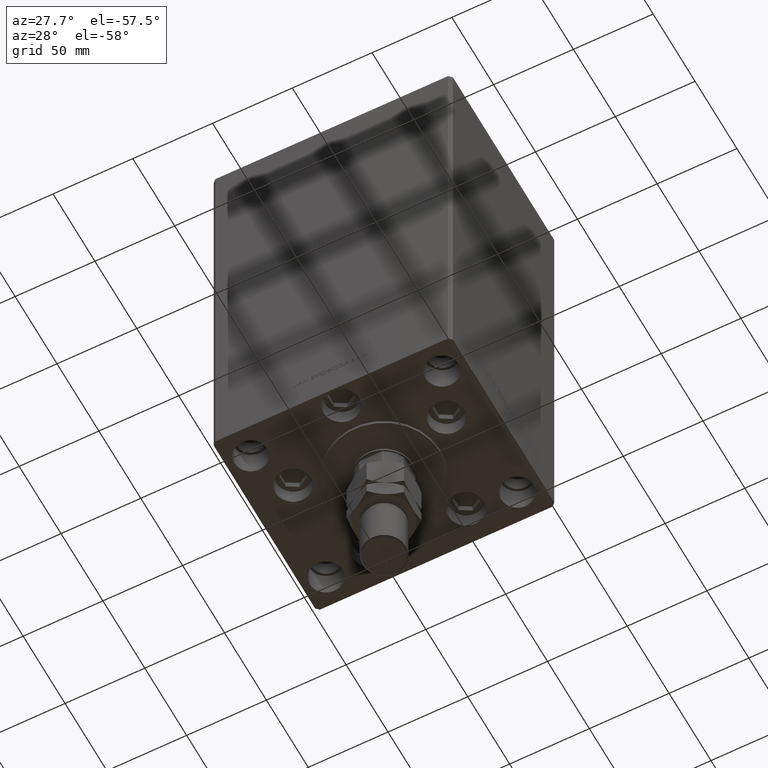
[diagram: clean part render]
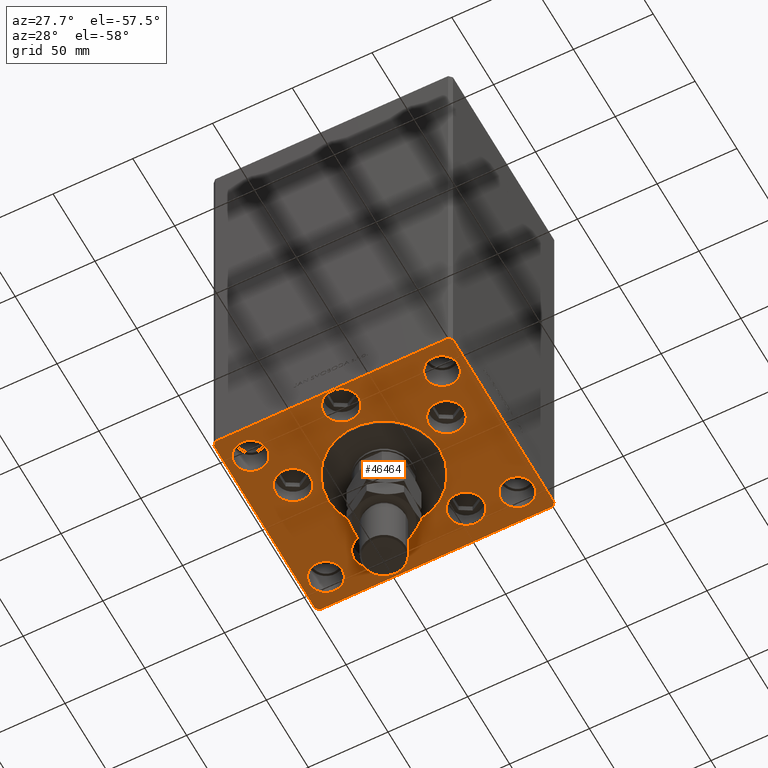
[diagram: same view with one face highlighted and labeled with its STEP entity id]
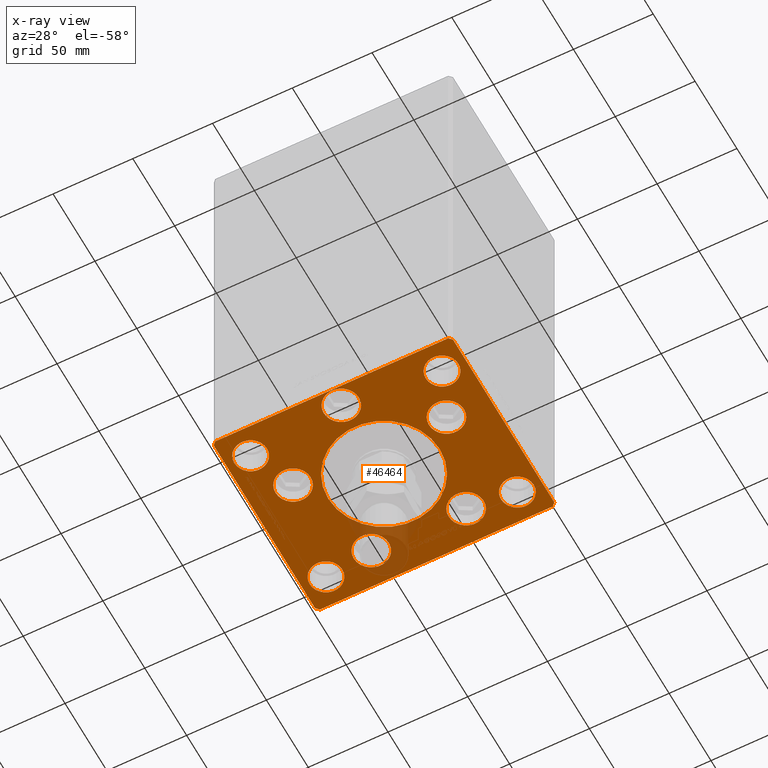
[diagram: x-ray of the same camera — body ghosted, the highlighted face saturated]
A machine part, auxiliary view. The second image highlights one B-rep face of the part: STEP entity #46464.
The next image is the same camera in x-ray: the body ghosted, the highlighted face saturated — about 5% of this face is hidden behind the body in this view.
In plain terms, the highlighted planar face has unit normal (0, 0, -1).
Its self-contained STEP definition (entity closure, byte-faithful):
#443 = EDGE_CURVE ( 'NONE', #10483, #50308, #12567, .T. ) ;
#507 = EDGE_CURVE ( 'NONE', #43805, #47898, #44443, .T. ) ;
#1202 = DIRECTION ( 'NONE',  ( 0.000000000000000000, 0.000000000000000000, 1.000000000000000000 ) ) ;
#1351 = CARTESIAN_POINT ( 'NONE',  ( -59.08326112068523628, -16.99999999999998934, 0.000000000000000000 ) ) ;
#1379 = EDGE_CURVE ( 'NONE', #7488, #6915, #21608, .T. ) ;
#1680 = DIRECTION ( 'NONE',  ( 1.000000000000000000, 0.000000000000000000, 0.000000000000000000 ) ) ;
#1813 = FACE_BOUND ( 'NONE', #44815, .T. ) ;
#2355 = CARTESIAN_POINT ( 'NONE',  ( -70.25000000000000000, -45.00000000000000000, 0.000000000000000000 ) ) ;
#2537 = EDGE_CURVE ( 'NONE', #6915, #7488, #19316, .T. ) ;
#2937 = ORIENTED_EDGE ( 'NONE', *, *, #29869, .T. ) ;
#3164 = DIRECTION ( 'NONE',  ( 1.000000000000000000, 0.000000000000000000, 0.000000000000000000 ) ) ;
#3392 = AXIS2_PLACEMENT_3D ( 'NONE', #12013, #43975, #16874 ) ;
#3421 = CARTESIAN_POINT ( 'NONE',  ( 29.73102073172061921, 41.43749999999997868, 0.000000000000000000 ) ) ;
#3515 = DIRECTION ( 'NONE',  ( 1.000000000000000000, 0.000000000000000000, 0.000000000000000000 ) ) ;
#3555 = ORIENTED_EDGE ( 'NONE', *, *, #40276, .T. ) ;
#3654 = VERTEX_POINT ( 'NONE', #49079 ) ;
#3710 = EDGE_CURVE ( 'NONE', #40291, #24454, #43961, .T. ) ;
#3824 = VERTEX_POINT ( 'NONE', #15796 ) ;
#4271 = EDGE_LOOP ( 'NONE', ( #17568, #41272 ) ) ;
#4351 = ORIENTED_EDGE ( 'NONE', *, *, #7043, .F. ) ;
#4615 = EDGE_CURVE ( 'NONE', #39604, #37613, #47872, .T. ) ;
#4895 = ORIENTED_EDGE ( 'NONE', *, *, #49908, .F. ) ;
#5079 = ORIENTED_EDGE ( 'NONE', *, *, #2537, .F. ) ;
#5294 = CIRCLE ( 'NONE', #21652, 11.00000000000000000 ) ;
#5361 = EDGE_CURVE ( 'NONE', #24454, #3824, #27336, .T. ) ;
#5520 = VERTEX_POINT ( 'NONE', #42367 ) ;
#5753 = AXIS2_PLACEMENT_3D ( 'NONE', #7699, #8452, #11543 ) ;
#6124 = DIRECTION ( 'NONE',  ( 0.000000000000000000, 0.000000000000000000, 1.000000000000000000 ) ) ;
#6352 = VERTEX_POINT ( 'NONE', #17091 ) ;
#6380 = VERTEX_POINT ( 'NONE', #32695 ) ;
#6566 = CARTESIAN_POINT ( 'NONE',  ( -35.00000000000000711, -6.938893903907228378E-15, 0.000000000000000000 ) ) ;
#6729 = AXIS2_PLACEMENT_3D ( 'NONE', #9956, #44487, #17642 ) ;
#6915 = VERTEX_POINT ( 'NONE', #18921 ) ;
#6999 = DIRECTION ( 'NONE',  ( 0.000000000000000000, 0.000000000000000000, 1.000000000000000000 ) ) ;
#7026 = AXIS2_PLACEMENT_3D ( 'NONE', #3421, #6999, #3164 ) ;
#7043 = EDGE_CURVE ( 'NONE', #50277, #28828, #42224, .T. ) ;
#7284 = ORIENTED_EDGE ( 'NONE', *, *, #11504, .F. ) ;
#7373 = DIRECTION ( 'NONE',  ( 0.000000000000000000, 1.000000000000000000, 0.000000000000000000 ) ) ;
#7488 = VERTEX_POINT ( 'NONE', #13191 ) ;
#7614 = VECTOR ( 'NONE', #28439, 1000.000000000000114 ) ;
#7699 = CARTESIAN_POINT ( 'NONE',  ( 60.00000000000000000, 45.00000000000000000, 0.000000000000000000 ) ) ;
#7916 = CIRCLE ( 'NONE', #33286, 35.00000000000000711 ) ;
#7947 = CARTESIAN_POINT ( 'NONE',  ( 0.000000000000000000, -51.00000000000000000, 0.000000000000000000 ) ) ;
#8169 = ORIENTED_EDGE ( 'NONE', *, *, #25336, .F. ) ;
#8452 = DIRECTION ( 'NONE',  ( 0.000000000000000000, 0.000000000000000000, 1.000000000000000000 ) ) ;
#8554 = VERTEX_POINT ( 'NONE', #20425 ) ;
#8639 = CARTESIAN_POINT ( 'NONE',  ( 0.000000000000000000, -6.938893903907228378E-15, 0.000000000000000000 ) ) ;
#8977 = FACE_BOUND ( 'NONE', #20734, .T. ) ;
#9218 = VERTEX_POINT ( 'NONE', #1351 ) ;
#9490 = FACE_BOUND ( 'NONE', #40988, .T. ) ;
#9956 = CARTESIAN_POINT ( 'NONE',  ( -60.00000000000000000, 45.00000000000000711, 0.000000000000000000 ) ) ;
#10109 = CIRCLE ( 'NONE', #45251, 10.25000000000000178 ) ;
#10311 = EDGE_CURVE ( 'NONE', #11995, #6352, #11973, .T. ) ;
#10344 = LINE ( 'NONE', #45889, #19102 ) ;
#10483 = VERTEX_POINT ( 'NONE', #39201 ) ;
#10575 = CARTESIAN_POINT ( 'NONE',  ( -29.73102073172061921, 41.43749999999997868, 0.000000000000000000 ) ) ;
#10704 = VERTEX_POINT ( 'NONE', #46049 ) ;
#10774 = EDGE_CURVE ( 'NONE', #28828, #50277, #7916, .T. ) ;
#11504 = EDGE_CURVE ( 'NONE', #44147, #35781, #46343, .T. ) ;
#11543 = DIRECTION ( 'NONE',  ( 1.000000000000000000, 0.000000000000000000, 0.000000000000000000 ) ) ;
#11564 = FACE_BOUND ( 'NONE', #42485, .T. ) ;
#11579 = DIRECTION ( 'NONE',  ( 0.000000000000000000, 0.000000000000000000, 1.000000000000000000 ) ) ;
#11631 = CIRCLE ( 'NONE', #6729, 10.25000000000000178 ) ;
#11632 = VERTEX_POINT ( 'NONE', #17028 ) ;
#11763 = AXIS2_PLACEMENT_3D ( 'NONE', #10575, #11579, #23600 ) ;
#11891 = CARTESIAN_POINT ( 'NONE',  ( 29.73102073172061921, 41.43749999999997868, 0.000000000000000000 ) ) ;
#11961 = ORIENTED_EDGE ( 'NONE', *, *, #13136, .F. ) ;
#11973 = CIRCLE ( 'NONE', #25060, 11.00000000000000355 ) ;
#11995 = VERTEX_POINT ( 'NONE', #46645 ) ;
#12013 = CARTESIAN_POINT ( 'NONE',  ( 48.08326112068523628, -16.99999999999998934, 0.000000000000000000 ) ) ;
#12079 = VERTEX_POINT ( 'NONE', #27721 ) ;
#12375 = DIRECTION ( 'NONE',  ( 0.000000000000000000, 0.000000000000000000, 1.000000000000000000 ) ) ;
#12557 = DIRECTION ( 'NONE',  ( 1.000000000000000000, 0.000000000000000000, 0.000000000000000000 ) ) ;
#12567 = CIRCLE ( 'NONE', #11763, 11.00000000000000000 ) ;
#12835 = CARTESIAN_POINT ( 'NONE',  ( -72.99999999999998579, 62.49999999999997158, 0.000000000000000000 ) ) ;
#13036 = AXIS2_PLACEMENT_3D ( 'NONE', #28200, #20530, #43544 ) ;
#13080 = FACE_BOUND ( 'NONE', #4271, .T. ) ;
#13136 = EDGE_CURVE ( 'NONE', #35781, #44147, #39091, .T. ) ;
#13191 = CARTESIAN_POINT ( 'NONE',  ( 18.73102073172061921, 41.43749999999997868, 0.000000000000000000 ) ) ;
#13211 = CIRCLE ( 'NONE', #3392, 11.00000000000000355 ) ;
#13421 = AXIS2_PLACEMENT_3D ( 'NONE', #27196, #38979, #46125 ) ;
#13556 = LINE ( 'NONE', #18162, #46693 ) ;
#13817 = CARTESIAN_POINT ( 'NONE',  ( -60.00000000000000711, -45.00000000000000000, 0.000000000000000000 ) ) ;
#14048 = ORIENTED_EDGE ( 'NONE', *, *, #3710, .T. ) ;
#14146 = CARTESIAN_POINT ( 'NONE',  ( 73.00000000000001421, 62.50000000000000000, 0.000000000000000000 ) ) ;
#15064 = ORIENTED_EDGE ( 'NONE', *, *, #38381, .T. ) ;
#15796 = CARTESIAN_POINT ( 'NONE',  ( 75.00000000000001421, -60.49999999999992184, 0.000000000000000000 ) ) ;
#16069 = EDGE_LOOP ( 'NONE', ( #4351, #30095 ) ) ;
#16522 = EDGE_CURVE ( 'NONE', #31477, #5520, #45727, .T. ) ;
#16669 = FACE_BOUND ( 'NONE', #46751, .T. ) ;
#16874 = DIRECTION ( 'NONE',  ( 1.000000000000000000, 0.000000000000000000, 0.000000000000000000 ) ) ;
#17028 = CARTESIAN_POINT ( 'NONE',  ( -37.08326112068522917, -16.99999999999998934, 0.000000000000000000 ) ) ;
#17091 = CARTESIAN_POINT ( 'NONE',  ( 37.08326112068522917, -16.99999999999998934, 0.000000000000000000 ) ) ;
#17374 = DIRECTION ( 'NONE',  ( 1.000000000000000000, 7.604267291953125828E-16, 0.000000000000000000 ) ) ;
#17568 = ORIENTED_EDGE ( 'NONE', *, *, #30268, .F. ) ;
#17642 = DIRECTION ( 'NONE',  ( 1.000000000000000000, 0.000000000000000000, 0.000000000000000000 ) ) ;
#17664 = AXIS2_PLACEMENT_3D ( 'NONE', #22975, #38589, #18638 ) ;
#17810 = ORIENTED_EDGE ( 'NONE', *, *, #23619, .F. ) ;
#17915 = ORIENTED_EDGE ( 'NONE', *, *, #24179, .T. ) ;
#18162 = CARTESIAN_POINT ( 'NONE',  ( 75.00000000000001421, 60.50000000000002842, 0.000000000000000000 ) ) ;
#18372 = DIRECTION ( 'NONE',  ( 1.000000000000000000, 0.000000000000000000, 0.000000000000000000 ) ) ;
#18462 = EDGE_CURVE ( 'NONE', #6380, #3654, #47871, .T. ) ;
#18638 = DIRECTION ( 'NONE',  ( 1.000000000000000000, 0.000000000000000000, 0.000000000000000000 ) ) ;
#18860 = CARTESIAN_POINT ( 'NONE',  ( -18.73102073172061921, 41.43749999999997868, 0.000000000000000000 ) ) ;
#18904 = CARTESIAN_POINT ( 'NONE',  ( 75.00000000000001421, -60.49999999999992184, 0.000000000000000000 ) ) ;
#18921 = CARTESIAN_POINT ( 'NONE',  ( 40.73102073172061921, 41.43749999999997868, 0.000000000000000000 ) ) ;
#19102 = VECTOR ( 'NONE', #33386, 1000.000000000000000 ) ;
#19316 = CIRCLE ( 'NONE', #7026, 11.00000000000000355 ) ;
#19634 = ORIENTED_EDGE ( 'NONE', *, *, #30762, .T. ) ;
#19863 = ORIENTED_EDGE ( 'NONE', *, *, #10311, .F. ) ;
#20314 = DIRECTION ( 'NONE',  ( 1.000000000000000000, 0.000000000000000000, 0.000000000000000000 ) ) ;
#20425 = CARTESIAN_POINT ( 'NONE',  ( 49.75000000000000000, -45.00000000000000000, 0.000000000000000000 ) ) ;
#20509 = FACE_BOUND ( 'NONE', #16069, .T. ) ;
#20530 = DIRECTION ( 'NONE',  ( 0.000000000000000000, 0.000000000000000000, 1.000000000000000000 ) ) ;
#20734 = EDGE_LOOP ( 'NONE', ( #4895, #34748 ) ) ;
#21126 = DIRECTION ( 'NONE',  ( 0.000000000000000000, 0.000000000000000000, 1.000000000000000000 ) ) ;
#21403 = EDGE_LOOP ( 'NONE', ( #2937, #14048, #42094, #3555, #15064, #17915, #35259, #19634 ) ) ;
#21427 = DIRECTION ( 'NONE',  ( 1.000000000000000000, 0.000000000000000000, 0.000000000000000000 ) ) ;
#21608 = CIRCLE ( 'NONE', #36317, 11.00000000000000355 ) ;
#21652 = AXIS2_PLACEMENT_3D ( 'NONE', #7947, #35595, #32766 ) ;
#21747 = DIRECTION ( 'NONE',  ( 1.000000000000000000, 0.000000000000000000, 0.000000000000000000 ) ) ;
#21935 = DIRECTION ( 'NONE',  ( 1.000000000000000000, 0.000000000000000000, 0.000000000000000000 ) ) ;
#22231 = CARTESIAN_POINT ( 'NONE',  ( -73.00000000000001421, -62.50000000000002842, 0.000000000000000000 ) ) ;
#22386 = ORIENTED_EDGE ( 'NONE', *, *, #4615, .F. ) ;
#22394 = EDGE_CURVE ( 'NONE', #5520, #31477, #25383, .T. ) ;
#22975 = CARTESIAN_POINT ( 'NONE',  ( -60.00000000000000000, 45.00000000000000711, 0.000000000000000000 ) ) ;
#23212 = CARTESIAN_POINT ( 'NONE',  ( -29.73102073172061921, 41.43749999999997868, 0.000000000000000000 ) ) ;
#23600 = DIRECTION ( 'NONE',  ( 1.000000000000000000, 0.000000000000000000, 0.000000000000000000 ) ) ;
#23619 = EDGE_CURVE ( 'NONE', #9218, #11632, #42565, .T. ) ;
#23747 = DIRECTION ( 'NONE',  ( 0.7071067811865489050, 0.7071067811865462405, 0.000000000000000000 ) ) ;
#23845 = AXIS2_PLACEMENT_3D ( 'NONE', #40075, #36750, #1680 ) ;
#24179 = EDGE_CURVE ( 'NONE', #12079, #6380, #29759, .T. ) ;
#24454 = VERTEX_POINT ( 'NONE', #45240 ) ;
#24494 = CARTESIAN_POINT ( 'NONE',  ( 73.00000000000001421, -62.49999999999991473, 0.000000000000000000 ) ) ;
#24683 = EDGE_CURVE ( 'NONE', #8554, #49000, #28740, .T. ) ;
#25060 = AXIS2_PLACEMENT_3D ( 'NONE', #43331, #12375, #20314 ) ;
#25102 = FACE_BOUND ( 'NONE', #48328, .T. ) ;
#25172 = AXIS2_PLACEMENT_3D ( 'NONE', #44261, #31749, #12557 ) ;
#25271 = CARTESIAN_POINT ( 'NONE',  ( 49.75000000000000000, 45.00000000000000000, 0.000000000000000000 ) ) ;
#25336 = EDGE_CURVE ( 'NONE', #6352, #11995, #13211, .T. ) ;
#25362 = FACE_OUTER_BOUND ( 'NONE', #21403, .T. ) ;
#25383 = CIRCLE ( 'NONE', #5753, 10.24999999999999467 ) ;
#25532 = CIRCLE ( 'NONE', #32057, 11.00000000000000355 ) ;
#25828 = LINE ( 'NONE', #18904, #45925 ) ;
#27196 = CARTESIAN_POINT ( 'NONE',  ( 0.000000000000000000, -51.00000000000000000, 0.000000000000000000 ) ) ;
#27336 = LINE ( 'NONE', #24494, #45484 ) ;
#27721 = CARTESIAN_POINT ( 'NONE',  ( 73.00000000000001421, 62.50000000000000000, 0.000000000000000000 ) ) ;
#27845 = EDGE_CURVE ( 'NONE', #11632, #9218, #25532, .T. ) ;
#28200 = CARTESIAN_POINT ( 'NONE',  ( 60.00000000000000000, 45.00000000000000000, 0.000000000000000000 ) ) ;
#28433 = FACE_BOUND ( 'NONE', #35817, .T. ) ;
#28439 = DIRECTION ( 'NONE',  ( 0.7071067811865474617, -0.7071067811865474617, 0.000000000000000000 ) ) ;
#28690 = DIRECTION ( 'NONE',  ( 1.000000000000000000, 0.000000000000000000, 0.000000000000000000 ) ) ;
#28697 = DIRECTION ( 'NONE',  ( -0.7071067811865549002, -0.7071067811865401342, 0.000000000000000000 ) ) ;
#28740 = CIRCLE ( 'NONE', #23845, 10.25000000000000178 ) ;
#28828 = VERTEX_POINT ( 'NONE', #33849 ) ;
#28862 = DIRECTION ( 'NONE',  ( 0.000000000000000000, 0.000000000000000000, 1.000000000000000000 ) ) ;
#29102 = CARTESIAN_POINT ( 'NONE',  ( -11.00000000000000000, -51.00000000000000000, 0.000000000000000000 ) ) ;
#29759 = LINE ( 'NONE', #14146, #36047 ) ;
#29869 = EDGE_CURVE ( 'NONE', #10704, #40291, #39965, .T. ) ;
#30095 = ORIENTED_EDGE ( 'NONE', *, *, #10774, .F. ) ;
#30129 = DIRECTION ( 'NONE',  ( 0.000000000000000000, 0.000000000000000000, 1.000000000000000000 ) ) ;
#30268 = EDGE_CURVE ( 'NONE', #49000, #8554, #10109, .T. ) ;
#30711 = ORIENTED_EDGE ( 'NONE', *, *, #39619, .F. ) ;
#30762 = EDGE_CURVE ( 'NONE', #3654, #10704, #10344, .T. ) ;
#30823 = AXIS2_PLACEMENT_3D ( 'NONE', #13817, #6124, #21747 ) ;
#30884 = DIRECTION ( 'NONE',  ( 0.000000000000000000, 0.000000000000000000, 1.000000000000000000 ) ) ;
#30946 = ORIENTED_EDGE ( 'NONE', *, *, #27845, .F. ) ;
#31350 = DIRECTION ( 'NONE',  ( 0.000000000000000000, 0.000000000000000000, 1.000000000000000000 ) ) ;
#31477 = VERTEX_POINT ( 'NONE', #25271 ) ;
#31749 = DIRECTION ( 'NONE',  ( 0.000000000000000000, 0.000000000000000000, 1.000000000000000000 ) ) ;
#31877 = VECTOR ( 'NONE', #28697, 1000.000000000000000 ) ;
#31948 = AXIS2_PLACEMENT_3D ( 'NONE', #38317, #30129, #18372 ) ;
#32057 = AXIS2_PLACEMENT_3D ( 'NONE', #45656, #21126, #33652 ) ;
#32274 = CARTESIAN_POINT ( 'NONE',  ( -75.00000000000000000, -60.50000000000004263, 0.000000000000000000 ) ) ;
#32329 = VECTOR ( 'NONE', #17374, 1000.000000000000000 ) ;
#32695 = CARTESIAN_POINT ( 'NONE',  ( -72.99999999999998579, 62.49999999999997158, 0.000000000000000000 ) ) ;
#32766 = DIRECTION ( 'NONE',  ( 1.000000000000000000, 0.000000000000000000, 0.000000000000000000 ) ) ;
#32979 = AXIS2_PLACEMENT_3D ( 'NONE', #44022, #36628, #28690 ) ;
#33099 = EDGE_LOOP ( 'NONE', ( #5079, #36752 ) ) ;
#33286 = AXIS2_PLACEMENT_3D ( 'NONE', #36795, #33455, #21935 ) ;
#33386 = DIRECTION ( 'NONE',  ( 0.000000000000000000, -1.000000000000000000, 0.000000000000000000 ) ) ;
#33455 = DIRECTION ( 'NONE',  ( 0.000000000000000000, 0.000000000000000000, 1.000000000000000000 ) ) ;
#33652 = DIRECTION ( 'NONE',  ( 1.000000000000000000, 0.000000000000000000, 0.000000000000000000 ) ) ;
#33849 = CARTESIAN_POINT ( 'NONE',  ( 35.00000000000000711, -2.652630106891490698E-15, 0.000000000000000000 ) ) ;
#34625 = ORIENTED_EDGE ( 'NONE', *, *, #16522, .F. ) ;
#34748 = ORIENTED_EDGE ( 'NONE', *, *, #507, .F. ) ;
#34778 = AXIS2_PLACEMENT_3D ( 'NONE', #8639, #28862, #44449 ) ;
#35259 = ORIENTED_EDGE ( 'NONE', *, *, #18462, .T. ) ;
#35460 = CIRCLE ( 'NONE', #41990, 11.00000000000000000 ) ;
#35595 = DIRECTION ( 'NONE',  ( 0.000000000000000000, 0.000000000000000000, 1.000000000000000000 ) ) ;
#35781 = VERTEX_POINT ( 'NONE', #36128 ) ;
#35817 = EDGE_LOOP ( 'NONE', ( #30946, #17810 ) ) ;
#36047 = VECTOR ( 'NONE', #48936, 1000.000000000000000 ) ;
#36128 = CARTESIAN_POINT ( 'NONE',  ( -49.75000000000000000, -45.00000000000000000, 0.000000000000000000 ) ) ;
#36317 = AXIS2_PLACEMENT_3D ( 'NONE', #11891, #31350, #39547 ) ;
#36628 = DIRECTION ( 'NONE',  ( -0.000000000000000000, 0.000000000000000000, 1.000000000000000000 ) ) ;
#36750 = DIRECTION ( 'NONE',  ( 0.000000000000000000, 0.000000000000000000, 1.000000000000000000 ) ) ;
#36752 = ORIENTED_EDGE ( 'NONE', *, *, #1379, .F. ) ;
#36795 = CARTESIAN_POINT ( 'NONE',  ( 0.000000000000000000, -6.938893903907228378E-15, 0.000000000000000000 ) ) ;
#36945 = ORIENTED_EDGE ( 'NONE', *, *, #443, .F. ) ;
#37613 = VERTEX_POINT ( 'NONE', #49714 ) ;
#38317 = CARTESIAN_POINT ( 'NONE',  ( -48.08326112068523628, -16.99999999999998934, 0.000000000000000000 ) ) ;
#38381 = EDGE_CURVE ( 'NONE', #38674, #12079, #13556, .T. ) ;
#38589 = DIRECTION ( 'NONE',  ( 0.000000000000000000, 0.000000000000000000, 1.000000000000000000 ) ) ;
#38651 = CARTESIAN_POINT ( 'NONE',  ( 11.00000000000000000, -51.00000000000000000, 0.000000000000000000 ) ) ;
#38674 = VERTEX_POINT ( 'NONE', #46423 ) ;
#38979 = DIRECTION ( 'NONE',  ( 0.000000000000000000, 0.000000000000000000, 1.000000000000000000 ) ) ;
#39091 = CIRCLE ( 'NONE', #25172, 10.25000000000000178 ) ;
#39201 = CARTESIAN_POINT ( 'NONE',  ( -40.73102073172061921, 41.43749999999997868, 0.000000000000000000 ) ) ;
#39547 = DIRECTION ( 'NONE',  ( 1.000000000000000000, 0.000000000000000000, 0.000000000000000000 ) ) ;
#39604 = VERTEX_POINT ( 'NONE', #48838 ) ;
#39619 = EDGE_CURVE ( 'NONE', #37613, #39604, #11631, .T. ) ;
#39965 = LINE ( 'NONE', #32274, #7614 ) ;
#40075 = CARTESIAN_POINT ( 'NONE',  ( 60.00000000000000711, -45.00000000000000000, 0.000000000000000000 ) ) ;
#40276 = EDGE_CURVE ( 'NONE', #3824, #38674, #25828, .T. ) ;
#40291 = VERTEX_POINT ( 'NONE', #22231 ) ;
#40362 = CARTESIAN_POINT ( 'NONE',  ( 60.00000000000000711, -45.00000000000000000, 0.000000000000000000 ) ) ;
#40988 = EDGE_LOOP ( 'NONE', ( #11961, #7284 ) ) ;
#40989 = ORIENTED_EDGE ( 'NONE', *, *, #47328, .F. ) ;
#41272 = ORIENTED_EDGE ( 'NONE', *, *, #24683, .F. ) ;
#41990 = AXIS2_PLACEMENT_3D ( 'NONE', #23212, #30884, #3515 ) ;
#42094 = ORIENTED_EDGE ( 'NONE', *, *, #5361, .T. ) ;
#42224 = CIRCLE ( 'NONE', #34778, 35.00000000000000711 ) ;
#42367 = CARTESIAN_POINT ( 'NONE',  ( 70.25000000000000000, 45.00000000000000000, 0.000000000000000000 ) ) ;
#42485 = EDGE_LOOP ( 'NONE', ( #19863, #8169 ) ) ;
#42565 = CIRCLE ( 'NONE', #31948, 11.00000000000000355 ) ;
#43331 = CARTESIAN_POINT ( 'NONE',  ( 48.08326112068523628, -16.99999999999998934, 0.000000000000000000 ) ) ;
#43544 = DIRECTION ( 'NONE',  ( 1.000000000000000000, 0.000000000000000000, 0.000000000000000000 ) ) ;
#43805 = VERTEX_POINT ( 'NONE', #29102 ) ;
#43961 = LINE ( 'NONE', #48825, #32329 ) ;
#43975 = DIRECTION ( 'NONE',  ( 0.000000000000000000, 0.000000000000000000, 1.000000000000000000 ) ) ;
#44022 = CARTESIAN_POINT ( 'NONE',  ( 0.000000000000000000, 0.000000000000000000, 0.000000000000000000 ) ) ;
#44147 = VERTEX_POINT ( 'NONE', #2355 ) ;
#44261 = CARTESIAN_POINT ( 'NONE',  ( -60.00000000000000711, -45.00000000000000000, 0.000000000000000000 ) ) ;
#44443 = CIRCLE ( 'NONE', #13421, 11.00000000000000000 ) ;
#44449 = DIRECTION ( 'NONE',  ( 1.000000000000000000, 0.000000000000000000, 0.000000000000000000 ) ) ;
#44487 = DIRECTION ( 'NONE',  ( 0.000000000000000000, 0.000000000000000000, 1.000000000000000000 ) ) ;
#44792 = PLANE ( 'NONE',  #32979 ) ;
#44815 = EDGE_LOOP ( 'NONE', ( #22386, #30711 ) ) ;
#45240 = CARTESIAN_POINT ( 'NONE',  ( 73.00000000000001421, -62.49999999999991473, 0.000000000000000000 ) ) ;
#45251 = AXIS2_PLACEMENT_3D ( 'NONE', #40362, #1202, #21427 ) ;
#45484 = VECTOR ( 'NONE', #23747, 999.9999999999998863 ) ;
#45656 = CARTESIAN_POINT ( 'NONE',  ( -48.08326112068523628, -16.99999999999998934, 0.000000000000000000 ) ) ;
#45727 = CIRCLE ( 'NONE', #13036, 10.24999999999999467 ) ;
#45770 = DIRECTION ( 'NONE',  ( -0.7071067811865524577, 0.7071067811865426878, 0.000000000000000000 ) ) ;
#45814 = ORIENTED_EDGE ( 'NONE', *, *, #22394, .F. ) ;
#45889 = CARTESIAN_POINT ( 'NONE',  ( -75.00000000000000000, 60.50000000000000000, 0.000000000000000000 ) ) ;
#45925 = VECTOR ( 'NONE', #7373, 1000.000000000000000 ) ;
#46049 = CARTESIAN_POINT ( 'NONE',  ( -75.00000000000000000, -60.50000000000004263, 0.000000000000000000 ) ) ;
#46125 = DIRECTION ( 'NONE',  ( 1.000000000000000000, 0.000000000000000000, 0.000000000000000000 ) ) ;
#46343 = CIRCLE ( 'NONE', #30823, 10.25000000000000178 ) ;
#46423 = CARTESIAN_POINT ( 'NONE',  ( 75.00000000000001421, 60.50000000000002842, 0.000000000000000000 ) ) ;
#46464 = ADVANCED_FACE ( 'NONE', ( #20509, #16669, #46612, #11564, #8977, #28433, #25102, #1813, #9490, #13080, #25362 ), #44792, .T. ) ;
#46509 = CARTESIAN_POINT ( 'NONE',  ( 70.25000000000000000, -45.00000000000000000, 0.000000000000000000 ) ) ;
#46612 = FACE_BOUND ( 'NONE', #33099, .T. ) ;
#46645 = CARTESIAN_POINT ( 'NONE',  ( 59.08326112068523628, -16.99999999999998934, 0.000000000000000000 ) ) ;
#46693 = VECTOR ( 'NONE', #45770, 1000.000000000000000 ) ;
#46751 = EDGE_LOOP ( 'NONE', ( #40989, #36945 ) ) ;
#47328 = EDGE_CURVE ( 'NONE', #50308, #10483, #35460, .T. ) ;
#47871 = LINE ( 'NONE', #12835, #31877 ) ;
#47872 = CIRCLE ( 'NONE', #17664, 10.25000000000000178 ) ;
#47898 = VERTEX_POINT ( 'NONE', #38651 ) ;
#48328 = EDGE_LOOP ( 'NONE', ( #45814, #34625 ) ) ;
#48825 = CARTESIAN_POINT ( 'NONE',  ( -73.00000000000001421, -62.50000000000002842, 0.000000000000000000 ) ) ;
#48838 = CARTESIAN_POINT ( 'NONE',  ( -49.74999999999999289, 45.00000000000000711, 0.000000000000000000 ) ) ;
#48936 = DIRECTION ( 'NONE',  ( -1.000000000000000000, -1.901066822988281950E-16, 0.000000000000000000 ) ) ;
#49000 = VERTEX_POINT ( 'NONE', #46509 ) ;
#49079 = CARTESIAN_POINT ( 'NONE',  ( -75.00000000000000000, 60.50000000000000000, 0.000000000000000000 ) ) ;
#49714 = CARTESIAN_POINT ( 'NONE',  ( -70.25000000000000000, 45.00000000000000711, 0.000000000000000000 ) ) ;
#49908 = EDGE_CURVE ( 'NONE', #47898, #43805, #5294, .T. ) ;
#50277 = VERTEX_POINT ( 'NONE', #6566 ) ;
#50308 = VERTEX_POINT ( 'NONE', #18860 ) ;